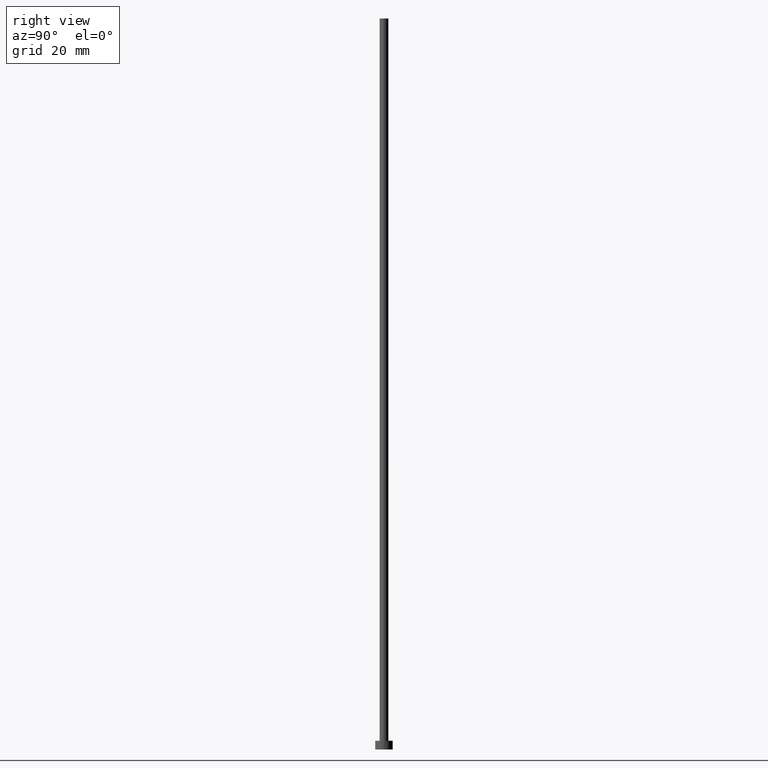
[diagram: clean part render]
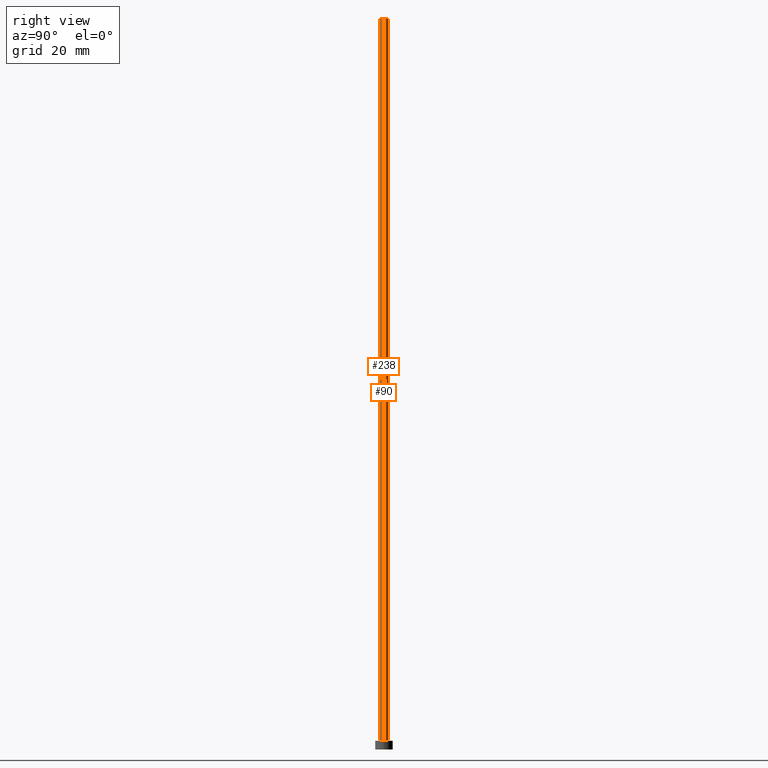
[diagram: same view with one multi-face feature highlighted, each face labeled with its STEP entity id]
A machine part, right view. The highlighted faces form ONE feature: a constant-radius fillet chain: 2 tangent blend faces with common blend radius 0.75 mm. The faces share edges in the B-rep.
Their STEP definitions:
[1] entity #238 (Cylinder):
#9 = AXIS2_PLACEMENT_3D ( 'NONE', #122, #81, #169 ) ;
#12 = CARTESIAN_POINT ( 'NONE',  ( -0.7500000000000001110, 0.000000000000000000, 125.0000000000000000 ) ) ;
#19 = AXIS2_PLACEMENT_3D ( 'NONE', #119, #241, #133 ) ;
#22 = DIRECTION ( 'NONE',  ( 1.000000000000000000, 0.000000000000000000, 0.000000000000000000 ) ) ;
#29 = VERTEX_POINT ( 'NONE', #219 ) ;
#30 = CARTESIAN_POINT ( 'NONE',  ( 0.7500000000000001110, 9.184850993605150903E-17, 1.500000000000000000 ) ) ;
#41 = CYLINDRICAL_SURFACE ( 'NONE', #9, 0.7500000000000001110 ) ;
#64 = ORIENTED_EDGE ( 'NONE', *, *, #242, .F. ) ;
#79 = LINE ( 'NONE', #220, #134 ) ;
#81 = DIRECTION ( 'NONE',  ( -0.000000000000000000, -0.000000000000000000, -1.000000000000000000 ) ) ;
#88 = ORIENTED_EDGE ( 'NONE', *, *, #113, .T. ) ;
#105 = CARTESIAN_POINT ( 'NONE',  ( -0.7500000000000001110, 0.000000000000000000, 1.500000000000000000 ) ) ;
#113 = EDGE_CURVE ( 'NONE', #29, #210, #145, .T. ) ;
#119 = CARTESIAN_POINT ( 'NONE',  ( 0.000000000000000000, 0.000000000000000000, 1.500000000000000000 ) ) ;
#122 = CARTESIAN_POINT ( 'NONE',  ( 0.000000000000000000, 0.000000000000000000, 125.0000000000000000 ) ) ;
#126 = EDGE_CURVE ( 'NONE', #214, #177, #79, .T. ) ;
#127 = FACE_OUTER_BOUND ( 'NONE', #159, .T. ) ;
#133 = DIRECTION ( 'NONE',  ( 1.000000000000000000, 0.000000000000000000, 0.000000000000000000 ) ) ;
#134 = VECTOR ( 'NONE', #168, 1000.000000000000000 ) ;
#141 = EDGE_CURVE ( 'NONE', #210, #177, #164, .T. ) ;
#145 = LINE ( 'NONE', #12, #221 ) ;
#149 = AXIS2_PLACEMENT_3D ( 'NONE', #243, #189, #22 ) ;
#159 = EDGE_LOOP ( 'NONE', ( #244, #64, #88, #246 ) ) ;
#164 = CIRCLE ( 'NONE', #19, 0.7500000000000001110 ) ;
#168 = DIRECTION ( 'NONE',  ( -0.000000000000000000, -0.000000000000000000, -1.000000000000000000 ) ) ;
#169 = DIRECTION ( 'NONE',  ( -1.000000000000000000, 0.000000000000000000, 0.000000000000000000 ) ) ;
#177 = VERTEX_POINT ( 'NONE', #30 ) ;
#189 = DIRECTION ( 'NONE',  ( 0.000000000000000000, 0.000000000000000000, 1.000000000000000000 ) ) ;
#195 = DIRECTION ( 'NONE',  ( -0.000000000000000000, -0.000000000000000000, -1.000000000000000000 ) ) ;
#206 = CARTESIAN_POINT ( 'NONE',  ( 0.7500000000000001110, 9.184850993605150903E-17, 125.0000000000000000 ) ) ;
#210 = VERTEX_POINT ( 'NONE', #105 ) ;
#214 = VERTEX_POINT ( 'NONE', #206 ) ;
#219 = CARTESIAN_POINT ( 'NONE',  ( -0.7500000000000001110, 0.000000000000000000, 125.0000000000000000 ) ) ;
#220 = CARTESIAN_POINT ( 'NONE',  ( 0.7500000000000001110, 9.184850993605150903E-17, 125.0000000000000000 ) ) ;
#221 = VECTOR ( 'NONE', #195, 1000.000000000000000 ) ;
#238 = ADVANCED_FACE ( 'NONE', ( #127 ), #41, .T. ) ;
#241 = DIRECTION ( 'NONE',  ( 0.000000000000000000, 0.000000000000000000, 1.000000000000000000 ) ) ;
#242 = EDGE_CURVE ( 'NONE', #29, #214, #252, .T. ) ;
#243 = CARTESIAN_POINT ( 'NONE',  ( 0.000000000000000000, 0.000000000000000000, 125.0000000000000000 ) ) ;
#244 = ORIENTED_EDGE ( 'NONE', *, *, #126, .F. ) ;
#246 = ORIENTED_EDGE ( 'NONE', *, *, #141, .T. ) ;
#252 = CIRCLE ( 'NONE', #149, 0.7500000000000001110 ) ;
[2] entity #90 (Cylinder):
#1 = EDGE_CURVE ( 'NONE', #214, #29, #156, .T. ) ;
#12 = CARTESIAN_POINT ( 'NONE',  ( -0.7500000000000001110, 0.000000000000000000, 125.0000000000000000 ) ) ;
#15 = EDGE_CURVE ( 'NONE', #177, #210, #225, .T. ) ;
#29 = VERTEX_POINT ( 'NONE', #219 ) ;
#30 = CARTESIAN_POINT ( 'NONE',  ( 0.7500000000000001110, 9.184850993605150903E-17, 1.500000000000000000 ) ) ;
#39 = CARTESIAN_POINT ( 'NONE',  ( 0.000000000000000000, 0.000000000000000000, 1.500000000000000000 ) ) ;
#43 = AXIS2_PLACEMENT_3D ( 'NONE', #237, #161, #58 ) ;
#51 = ORIENTED_EDGE ( 'NONE', *, *, #15, .T. ) ;
#58 = DIRECTION ( 'NONE',  ( -1.000000000000000000, 0.000000000000000000, 0.000000000000000000 ) ) ;
#59 = DIRECTION ( 'NONE',  ( 1.000000000000000000, 0.000000000000000000, 0.000000000000000000 ) ) ;
#61 = EDGE_LOOP ( 'NONE', ( #188, #103, #51, #128 ) ) ;
#73 = CARTESIAN_POINT ( 'NONE',  ( 0.000000000000000000, 0.000000000000000000, 125.0000000000000000 ) ) ;
#75 = CYLINDRICAL_SURFACE ( 'NONE', #43, 0.7500000000000001110 ) ;
#79 = LINE ( 'NONE', #220, #134 ) ;
#90 = ADVANCED_FACE ( 'NONE', ( #185 ), #75, .T. ) ;
#93 = DIRECTION ( 'NONE',  ( 0.000000000000000000, 0.000000000000000000, 1.000000000000000000 ) ) ;
#103 = ORIENTED_EDGE ( 'NONE', *, *, #126, .T. ) ;
#105 = CARTESIAN_POINT ( 'NONE',  ( -0.7500000000000001110, 0.000000000000000000, 1.500000000000000000 ) ) ;
#106 = AXIS2_PLACEMENT_3D ( 'NONE', #73, #93, #233 ) ;
#113 = EDGE_CURVE ( 'NONE', #29, #210, #145, .T. ) ;
#126 = EDGE_CURVE ( 'NONE', #214, #177, #79, .T. ) ;
#128 = ORIENTED_EDGE ( 'NONE', *, *, #113, .F. ) ;
#134 = VECTOR ( 'NONE', #168, 1000.000000000000000 ) ;
#145 = LINE ( 'NONE', #12, #221 ) ;
#156 = CIRCLE ( 'NONE', #106, 0.7500000000000001110 ) ;
#161 = DIRECTION ( 'NONE',  ( -0.000000000000000000, -0.000000000000000000, -1.000000000000000000 ) ) ;
#168 = DIRECTION ( 'NONE',  ( -0.000000000000000000, -0.000000000000000000, -1.000000000000000000 ) ) ;
#177 = VERTEX_POINT ( 'NONE', #30 ) ;
#182 = DIRECTION ( 'NONE',  ( 0.000000000000000000, 0.000000000000000000, 1.000000000000000000 ) ) ;
#185 = FACE_OUTER_BOUND ( 'NONE', #61, .T. ) ;
#188 = ORIENTED_EDGE ( 'NONE', *, *, #1, .F. ) ;
#195 = DIRECTION ( 'NONE',  ( -0.000000000000000000, -0.000000000000000000, -1.000000000000000000 ) ) ;
#204 = AXIS2_PLACEMENT_3D ( 'NONE', #39, #182, #59 ) ;
#206 = CARTESIAN_POINT ( 'NONE',  ( 0.7500000000000001110, 9.184850993605150903E-17, 125.0000000000000000 ) ) ;
#210 = VERTEX_POINT ( 'NONE', #105 ) ;
#214 = VERTEX_POINT ( 'NONE', #206 ) ;
#219 = CARTESIAN_POINT ( 'NONE',  ( -0.7500000000000001110, 0.000000000000000000, 125.0000000000000000 ) ) ;
#220 = CARTESIAN_POINT ( 'NONE',  ( 0.7500000000000001110, 9.184850993605150903E-17, 125.0000000000000000 ) ) ;
#221 = VECTOR ( 'NONE', #195, 1000.000000000000000 ) ;
#225 = CIRCLE ( 'NONE', #204, 0.7500000000000001110 ) ;
#233 = DIRECTION ( 'NONE',  ( 1.000000000000000000, 0.000000000000000000, 0.000000000000000000 ) ) ;
#237 = CARTESIAN_POINT ( 'NONE',  ( 0.000000000000000000, 0.000000000000000000, 125.0000000000000000 ) ) ;